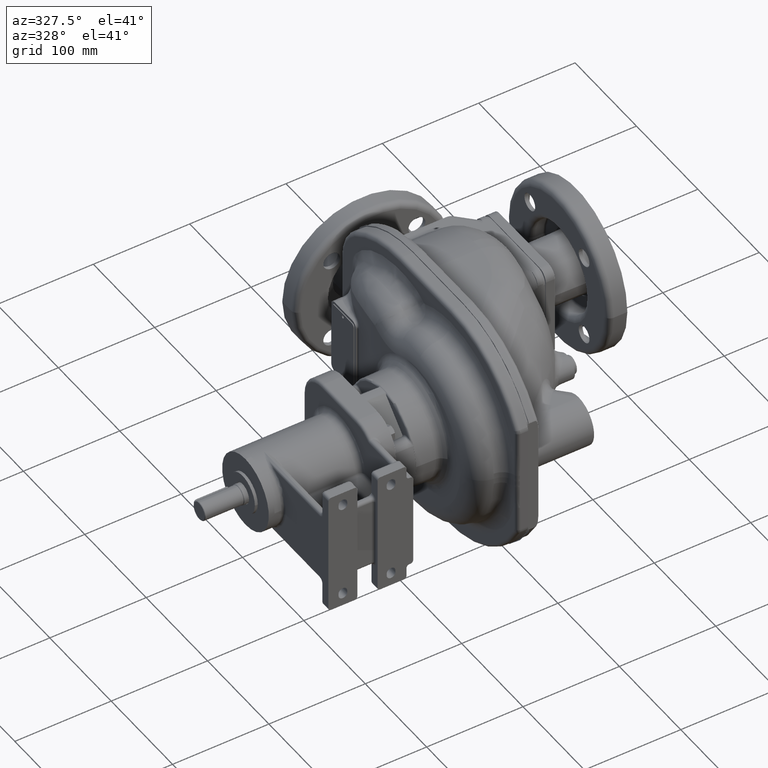
[diagram: clean part render]
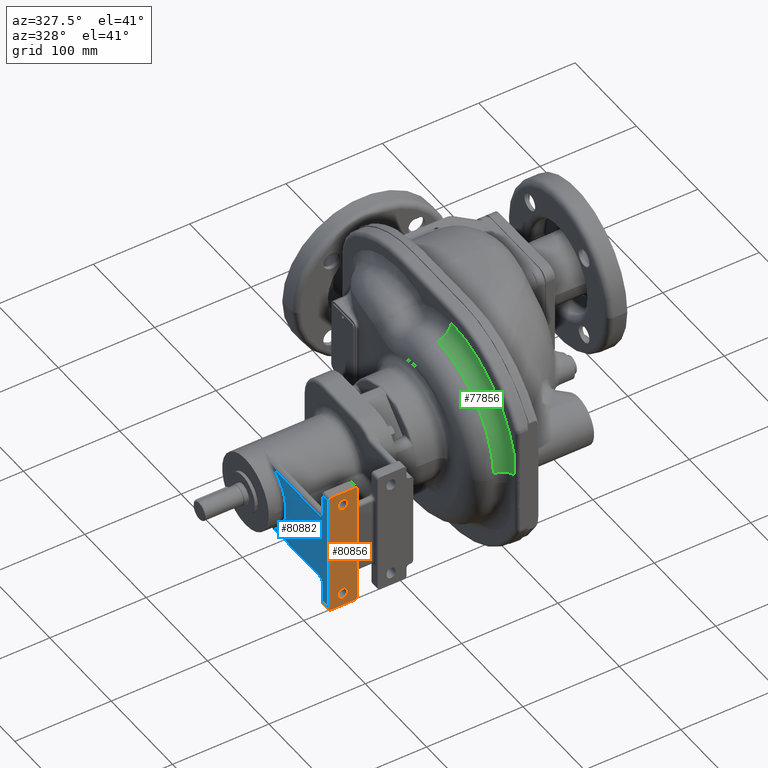
[diagram: same view with three faces highlighted in distinct colors, each labeled with its STEP entity id]
A machine part, auxiliary view with three faces highlighted in distinct colors.
Their STEP definitions:

[orange] entity #80856 — the highlighted planar face has unit normal (0, 1, 0).
#31646=CARTESIAN_POINT('',(-1.985E2,2.E1,-6.2E1));
#31647=DIRECTION('',(0.E0,1.E0,0.E0));
#31648=DIRECTION('',(1.E0,0.E0,-7.579122514774E-14));
#31649=AXIS2_PLACEMENT_3D('',#31646,#31647,#31648);
#31668=DIRECTION('',(1.E0,0.E0,0.E0));
#31669=VECTOR('',#31668,2.4E1);
#31670=CARTESIAN_POINT('',(-2.225E2,2.E1,-6.5E1));
#31671=LINE('',#31670,#31669);
#31682=CARTESIAN_POINT('',(-2.225E2,2.E1,-6.2E1));
#31683=DIRECTION('',(0.E0,1.E0,0.E0));
#31684=DIRECTION('',(0.E0,0.E0,-1.E0));
#31685=AXIS2_PLACEMENT_3D('',#31682,#31683,#31684);
#31692=DIRECTION('',(0.E0,0.E0,1.E0));
#31693=VECTOR('',#31692,2.5E0);
#31694=CARTESIAN_POINT('',(-2.15E2,2.E1,5.E1));
#31695=LINE('',#31694,#31693);
#31696=DIRECTION('',(0.E0,0.E0,-1.E0));
#31697=VECTOR('',#31696,2.5E0);
#31698=CARTESIAN_POINT('',(-2.06E2,2.E1,5.25E1));
#31699=LINE('',#31698,#31697);
#31700=CARTESIAN_POINT('',(-2.105E2,2.E1,5.25E1));
#31701=DIRECTION('',(0.E0,1.E0,0.E0));
#31702=DIRECTION('',(-1.E0,0.E0,0.E0));
#31703=AXIS2_PLACEMENT_3D('',#31700,#31701,#31702);
#31705=DIRECTION('',(0.E0,0.E0,-1.E0));
#31706=VECTOR('',#31705,2.5E0);
#31707=CARTESIAN_POINT('',(-2.06E2,2.E1,-5.E1));
#31708=LINE('',#31707,#31706);
#31709=DIRECTION('',(0.E0,0.E0,1.E0));
#31710=VECTOR('',#31709,2.5E0);
#31711=CARTESIAN_POINT('',(-2.15E2,2.E1,-5.25E1));
#31712=LINE('',#31711,#31710);
#31713=CARTESIAN_POINT('',(-2.105E2,2.E1,-5.25E1));
#31714=DIRECTION('',(0.E0,1.E0,0.E0));
#31715=DIRECTION('',(1.E0,0.E0,0.E0));
#31716=AXIS2_PLACEMENT_3D('',#31713,#31714,#31715);
#31718=DIRECTION('',(0.E0,0.E0,1.E0));
#31719=VECTOR('',#31718,1.24E2);
#31720=CARTESIAN_POINT('',(-2.255E2,2.E1,-6.2E1));
#31721=LINE('',#31720,#31719);
#32832=DIRECTION('',(-1.E0,0.E0,0.E0));
#32833=VECTOR('',#32832,2.4E1);
#32834=CARTESIAN_POINT('',(-1.985E2,2.E1,6.5E1));
#32835=LINE('',#32834,#32833);
#32844=CARTESIAN_POINT('',(-1.985E2,2.E1,6.2E1));
#32845=DIRECTION('',(0.E0,1.E0,0.E0));
#32846=DIRECTION('',(0.E0,0.E0,1.E0));
#32847=AXIS2_PLACEMENT_3D('',#32844,#32845,#32846);
#32858=DIRECTION('',(0.E0,0.E0,1.E0));
#32859=VECTOR('',#32858,1.24E2);
#32860=CARTESIAN_POINT('',(-1.955E2,2.E1,-6.2E1));
#32861=LINE('',#32860,#32859);
#33104=CARTESIAN_POINT('',(-2.225E2,2.E1,6.2E1));
#33105=DIRECTION('',(0.E0,1.E0,0.E0));
#33106=DIRECTION('',(-1.E0,0.E0,0.E0));
#33107=AXIS2_PLACEMENT_3D('',#33104,#33105,#33106);
#33128=CARTESIAN_POINT('',(-2.105E2,2.E1,5.E1));
#33129=DIRECTION('',(0.E0,1.E0,0.E0));
#33130=DIRECTION('',(1.E0,0.E0,0.E0));
#33131=AXIS2_PLACEMENT_3D('',#33128,#33129,#33130);
#33163=CARTESIAN_POINT('',(-2.105E2,2.E1,-5.E1));
#33164=DIRECTION('',(0.E0,1.E0,0.E0));
#33165=DIRECTION('',(-1.E0,0.E0,0.E0));
#33166=AXIS2_PLACEMENT_3D('',#33163,#33164,#33165);
#44048=CARTESIAN_POINT('',(-2.255E2,2.E1,-6.2E1));
#44049=CARTESIAN_POINT('',(-2.255E2,2.E1,6.2E1));
#44050=VERTEX_POINT('',#44048);
#44051=VERTEX_POINT('',#44049);
#44052=CARTESIAN_POINT('',(-1.985E2,2.E1,-6.5E1));
#44054=VERTEX_POINT('',#44052);
#44056=CARTESIAN_POINT('',(-1.955E2,2.E1,-6.2E1));
#44058=VERTEX_POINT('',#44056);
#44060=CARTESIAN_POINT('',(-1.955E2,2.E1,6.2E1));
#44061=VERTEX_POINT('',#44060);
#44062=CARTESIAN_POINT('',(-1.985E2,2.E1,6.5E1));
#44063=VERTEX_POINT('',#44062);
#44150=CARTESIAN_POINT('',(-2.225E2,2.E1,-6.5E1));
#44151=VERTEX_POINT('',#44150);
#44152=CARTESIAN_POINT('',(-2.225E2,2.E1,6.5E1));
#44153=VERTEX_POINT('',#44152);
#44261=CARTESIAN_POINT('',(-2.15E2,2.E1,5.E1));
#44262=CARTESIAN_POINT('',(-2.15E2,2.E1,5.25E1));
#44263=VERTEX_POINT('',#44261);
#44264=VERTEX_POINT('',#44262);
#44265=CARTESIAN_POINT('',(-2.06E2,2.E1,5.25E1));
#44266=VERTEX_POINT('',#44265);
#44267=CARTESIAN_POINT('',(-2.06E2,2.E1,5.E1));
#44268=VERTEX_POINT('',#44267);
#44277=CARTESIAN_POINT('',(-2.06E2,2.E1,-5.E1));
#44278=CARTESIAN_POINT('',(-2.06E2,2.E1,-5.25E1));
#44279=VERTEX_POINT('',#44277);
#44280=VERTEX_POINT('',#44278);
#44281=CARTESIAN_POINT('',(-2.15E2,2.E1,-5.25E1));
#44282=VERTEX_POINT('',#44281);
#44283=CARTESIAN_POINT('',(-2.15E2,2.E1,-5.E1));
#44284=VERTEX_POINT('',#44283);
#80816=CARTESIAN_POINT('',(-2.385E2,2.E1,0.E0));
#80817=DIRECTION('',(0.E0,1.E0,0.E0));
#80818=DIRECTION('',(-1.E0,0.E0,0.E0));
#80819=AXIS2_PLACEMENT_3D('',#80816,#80817,#80818);
#80820=PLANE('',#80819);
#80822=ORIENTED_EDGE('',*,*,#80821,.T.);
#80824=ORIENTED_EDGE('',*,*,#80823,.T.);
#80826=ORIENTED_EDGE('',*,*,#80825,.F.);
#80828=ORIENTED_EDGE('',*,*,#80827,.T.);
#80830=ORIENTED_EDGE('',*,*,#80829,.F.);
#80831=ORIENTED_EDGE('',*,*,#80753,.T.);
#80832=ORIENTED_EDGE('',*,*,#80771,.F.);
#80833=ORIENTED_EDGE('',*,*,#80807,.T.);
#80834=EDGE_LOOP('',(#80822,#80824,#80826,#80828,#80830,#80831,#80832,#80833));
#80835=FACE_OUTER_BOUND('',#80834,.F.);
#80837=ORIENTED_EDGE('',*,*,#80836,.F.);
#80839=ORIENTED_EDGE('',*,*,#80838,.F.);
#80841=ORIENTED_EDGE('',*,*,#80840,.F.);
#80843=ORIENTED_EDGE('',*,*,#80842,.F.);
#80844=EDGE_LOOP('',(#80837,#80839,#80841,#80843));
#80845=FACE_BOUND('',#80844,.F.);
#80847=ORIENTED_EDGE('',*,*,#80846,.F.);
#80849=ORIENTED_EDGE('',*,*,#80848,.F.);
#80851=ORIENTED_EDGE('',*,*,#80850,.F.);
#80853=ORIENTED_EDGE('',*,*,#80852,.F.);
#80854=EDGE_LOOP('',(#80847,#80849,#80851,#80853));
#80855=FACE_BOUND('',#80854,.F.);
#80856=ADVANCED_FACE('',(#80835,#80845,#80855),#80820,.F.);
#31650=CIRCLE('',#31649,3.E0);
#31686=CIRCLE('',#31685,3.E0);
#31704=CIRCLE('',#31703,4.5E0);
#31717=CIRCLE('',#31716,4.5E0);
#32848=CIRCLE('',#32847,3.E0);
#33108=CIRCLE('',#33107,3.E0);
#33132=CIRCLE('',#33131,4.5E0);
#33167=CIRCLE('',#33166,4.5E0);
#80753=EDGE_CURVE('',#44058,#44054,#31650,.T.);
#80771=EDGE_CURVE('',#44151,#44054,#31671,.T.);
#80807=EDGE_CURVE('',#44151,#44050,#31686,.T.);
#80821=EDGE_CURVE('',#44050,#44051,#31721,.T.);
#80823=EDGE_CURVE('',#44051,#44153,#33108,.T.);
#80825=EDGE_CURVE('',#44063,#44153,#32835,.T.);
#80827=EDGE_CURVE('',#44063,#44061,#32848,.T.);
#80829=EDGE_CURVE('',#44058,#44061,#32861,.T.);
#80836=EDGE_CURVE('',#44263,#44264,#31695,.T.);
#80838=EDGE_CURVE('',#44268,#44263,#33132,.T.);
#80840=EDGE_CURVE('',#44266,#44268,#31699,.T.);
#80842=EDGE_CURVE('',#44264,#44266,#31704,.T.);
#80846=EDGE_CURVE('',#44279,#44280,#31708,.T.);
#80848=EDGE_CURVE('',#44284,#44279,#33167,.T.);
#80850=EDGE_CURVE('',#44282,#44284,#31712,.T.);
#80852=EDGE_CURVE('',#44280,#44282,#31717,.T.);

[blue] entity #80882 — the highlighted planar face has unit normal (-1, 0, 0).
#31718=DIRECTION('',(0.E0,0.E0,1.E0));
#31719=VECTOR('',#31718,1.24E2);
#31720=CARTESIAN_POINT('',(-2.255E2,2.E1,-6.2E1));
#31721=LINE('',#31720,#31719);
#31722=DIRECTION('',(0.E0,1.E0,0.E0));
#31723=VECTOR('',#31722,9.E0);
#31724=CARTESIAN_POINT('',(-2.255E2,2.E1,-6.2E1));
#31725=LINE('',#31724,#31723);
#31726=DIRECTION('',(0.E0,0.E0,1.E0));
#31727=VECTOR('',#31726,2.1E1);
#31728=CARTESIAN_POINT('',(-2.255E2,2.9E1,-6.2E1));
#31729=LINE('',#31728,#31727);
#31730=DIRECTION('',(0.E0,-1.E0,0.E0));
#31731=VECTOR('',#31730,7.364584349594E1);
#31732=CARTESIAN_POINT('',(-2.255E2,1.086458434959E2,-3.5E1));
#31733=LINE('',#31732,#31731);
#31734=DIRECTION('',(0.E0,1.E0,0.E0));
#31735=VECTOR('',#31734,7.364584349594E1);
#31736=CARTESIAN_POINT('',(-2.255E2,3.5E1,3.5E1));
#31737=LINE('',#31736,#31735);
#31738=DIRECTION('',(0.E0,0.E0,1.E0));
#31739=VECTOR('',#31738,2.1E1);
#31740=CARTESIAN_POINT('',(-2.255E2,2.9E1,4.1E1));
#31741=LINE('',#31740,#31739);
#31742=DIRECTION('',(0.E0,1.E0,0.E0));
#31743=VECTOR('',#31742,9.E0);
#31744=CARTESIAN_POINT('',(-2.255E2,2.E1,6.2E1));
#31745=LINE('',#31744,#31743);
#31756=CARTESIAN_POINT('',(-2.255E2,3.5E1,-4.1E1));
#31757=DIRECTION('',(1.E0,0.E0,0.E0));
#31758=DIRECTION('',(0.E0,-4.263256414561E-14,1.E0));
#31759=AXIS2_PLACEMENT_3D('',#31756,#31757,#31758);
#31766=CARTESIAN_POINT('',(-2.255E2,1.086458434959E2,-3.5E1));
#32798=CARTESIAN_POINT('',(-2.255E2,3.5E1,4.1E1));
#32799=DIRECTION('',(1.E0,0.E0,0.E0));
#32800=DIRECTION('',(0.E0,-1.E0,0.E0));
#32801=AXIS2_PLACEMENT_3D('',#32798,#32799,#32800);
#33119=CARTESIAN_POINT('',(-2.255E2,1.3E2,0.E0));
#33120=DIRECTION('',(1.E0,0.E0,0.E0));
#33121=DIRECTION('',(0.E0,-5.208330854649E-1,8.536585365854E-1));
#33122=AXIS2_PLACEMENT_3D('',#33119,#33120,#33121);
#44048=CARTESIAN_POINT('',(-2.255E2,2.E1,-6.2E1));
#44049=CARTESIAN_POINT('',(-2.255E2,2.E1,6.2E1));
#44050=VERTEX_POINT('',#44048);
#44051=VERTEX_POINT('',#44049);
#44130=VERTEX_POINT('',#31766);
#44142=CARTESIAN_POINT('',(-2.255E2,3.5E1,-3.5E1));
#44143=VERTEX_POINT('',#44142);
#44160=CARTESIAN_POINT('',(-2.255E2,2.9E1,6.2E1));
#44161=VERTEX_POINT('',#44160);
#44164=CARTESIAN_POINT('',(-2.255E2,2.9E1,-6.2E1));
#44165=VERTEX_POINT('',#44164);
#44174=CARTESIAN_POINT('',(-2.255E2,2.9E1,-4.1E1));
#44175=VERTEX_POINT('',#44174);
#44180=CARTESIAN_POINT('',(-2.255E2,2.9E1,4.1E1));
#44181=VERTEX_POINT('',#44180);
#44182=CARTESIAN_POINT('',(-2.255E2,3.5E1,3.5E1));
#44183=VERTEX_POINT('',#44182);
#44184=CARTESIAN_POINT('',(-2.255E2,1.086458434959E2,3.5E1));
#44185=VERTEX_POINT('',#44184);
#80857=CARTESIAN_POINT('',(-2.255E2,1.3E2,0.E0));
#80858=DIRECTION('',(-1.E0,0.E0,0.E0));
#80859=DIRECTION('',(0.E0,0.E0,1.E0));
#80860=AXIS2_PLACEMENT_3D('',#80857,#80858,#80859);
#80861=PLANE('',#80860);
#80862=ORIENTED_EDGE('',*,*,#80821,.F.);
#80863=ORIENTED_EDGE('',*,*,#80811,.T.);
#80865=ORIENTED_EDGE('',*,*,#80864,.T.);
#80867=ORIENTED_EDGE('',*,*,#80866,.F.);
#80869=ORIENTED_EDGE('',*,*,#80868,.F.);
#80871=ORIENTED_EDGE('',*,*,#80870,.F.);
#80873=ORIENTED_EDGE('',*,*,#80872,.F.);
#80875=ORIENTED_EDGE('',*,*,#80874,.F.);
#80877=ORIENTED_EDGE('',*,*,#80876,.T.);
#80879=ORIENTED_EDGE('',*,*,#80878,.F.);
#80880=EDGE_LOOP('',(#80862,#80863,#80865,#80867,#80869,#80871,#80873,#80875,
#80877,#80879));
#80881=FACE_OUTER_BOUND('',#80880,.F.);
#80882=ADVANCED_FACE('',(#80881),#80861,.T.);
#31760=CIRCLE('',#31759,6.E0);
#32802=CIRCLE('',#32801,6.E0);
#33123=CIRCLE('',#33122,4.1E1);
#80811=EDGE_CURVE('',#44050,#44165,#31725,.T.);
#80821=EDGE_CURVE('',#44050,#44051,#31721,.T.);
#80864=EDGE_CURVE('',#44165,#44175,#31729,.T.);
#80866=EDGE_CURVE('',#44143,#44175,#31760,.T.);
#80868=EDGE_CURVE('',#44130,#44143,#31733,.T.);
#80870=EDGE_CURVE('',#44185,#44130,#33123,.T.);
#80872=EDGE_CURVE('',#44183,#44185,#31737,.T.);
#80874=EDGE_CURVE('',#44181,#44183,#32802,.T.);
#80876=EDGE_CURVE('',#44181,#44161,#31741,.T.);
#80878=EDGE_CURVE('',#44051,#44161,#31745,.T.);

[green] entity #77856 — the highlighted toroidal blend (fillet) surface has major radius 107.129 mm and minor (blend) radius 15 mm.
#27088=CARTESIAN_POINT('',(-3.15E1,1.25E2,-5.E0));
#27089=DIRECTION('',(1.E0,0.E0,0.E0));
#27090=DIRECTION('',(0.E0,0.E0,1.E0));
#27091=AXIS2_PLACEMENT_3D('',#27088,#27089,#27090);
#29171=CARTESIAN_POINT('',(-4.568918918919E1,1.25E2,-5.E0));
#29172=DIRECTION('',(1.E0,0.E0,0.E0));
#29173=DIRECTION('',(0.E0,0.E0,1.E0));
#29174=AXIS2_PLACEMENT_3D('',#29171,#29172,#29173);
#29188=CARTESIAN_POINT('',(-3.182698525263E1,2.118351033534E1,
1.413936083806E0));
#29189=CARTESIAN_POINT('',(-3.181820782298E1,2.119474251940E1,
2.266283764287E0));
#29190=CARTESIAN_POINT('',(-3.179747329907E1,2.122167475129E1,
3.973700314763E0));
#29191=CARTESIAN_POINT('',(-3.175826323863E1,2.127567783766E1,
6.548588379553E0));
#29192=CARTESIAN_POINT('',(-3.171306143300E1,2.134306839745E1,
9.129354644154E0));
#29193=CARTESIAN_POINT('',(-3.166454584854E1,2.142359022781E1,
1.171180690723E1));
#29194=CARTESIAN_POINT('',(-3.161590009142E1,2.151680066411E1,
1.429067772634E1));
#29195=CARTESIAN_POINT('',(-3.157072546244E1,2.162213780910E1,
1.686138305023E1));
#29196=CARTESIAN_POINT('',(-3.153296165236E1,2.173896202939E1,
1.941936753854E1));
#29197=CARTESIAN_POINT('',(-3.150679897131E1,2.186650061503E1,
2.196072563287E1));
#29198=CARTESIAN_POINT('',(-3.150000027972E1,2.195802489714E1,
2.363924415820E1));
#29199=CARTESIAN_POINT('',(-3.15E1,2.200533970174E1,2.447525881542E1));
#29201=CARTESIAN_POINT('',(-4.65E1,1.807455064928E1,1.605998251747E0));
#29202=DIRECTION('',(0.E0,-6.166377542583E-2,-9.980969786550E-1));
#29203=DIRECTION('',(5.405405405406E-2,9.966377717656E-1,-6.157362365916E-2));
#29204=AXIS2_PLACEMENT_3D('',#29201,#29202,#29203);
#29206=CARTESIAN_POINT('',(-4.65E1,1.25E2,1.021293187309E2));
#29207=DIRECTION('',(0.E0,-1.E0,0.E0));
#29208=DIRECTION('',(5.405405405406E-2,0.E0,-9.985380109141E-1));
#29209=AXIS2_PLACEMENT_3D('',#29206,#29207,#29208);
#41503=CARTESIAN_POINT('',(-4.568918918919E1,1.25E2,8.715124856723E1));
#41504=CARTESIAN_POINT('',(-4.568918918919E1,3.302411722577E1,
6.823938968472E-1));
#41505=VERTEX_POINT('',#41503);
#41506=VERTEX_POINT('',#41504);
#41540=CARTESIAN_POINT('',(-3.15E1,1.25E2,1.021293187309E2));
#41541=VERTEX_POINT('',#41540);
#41589=CARTESIAN_POINT('',(-3.15E1,2.200533970174E1,2.447525881542E1));
#41591=VERTEX_POINT('',#41589);
#41607=VERTEX_POINT('',#29188);
#77841=CARTESIAN_POINT('',(-4.65E1,1.25E2,-5.E0));
#77842=DIRECTION('',(-1.E0,0.E0,0.E0));
#77843=DIRECTION('',(0.E0,5.694319644105E-3,9.999837872305E-1));
#77844=AXIS2_PLACEMENT_3D('',#77841,#77842,#77843);
#77845=TOROIDAL_SURFACE('',#77844,1.071293187309E2,1.5E1);
#77847=ORIENTED_EDGE('',*,*,#77846,.F.);
#77849=ORIENTED_EDGE('',*,*,#77848,.F.);
#77850=ORIENTED_EDGE('',*,*,#77829,.F.);
#77852=ORIENTED_EDGE('',*,*,#77851,.T.);
#77853=ORIENTED_EDGE('',*,*,#75271,.T.);
#77854=EDGE_LOOP('',(#77847,#77849,#77850,#77852,#77853));
#77855=FACE_OUTER_BOUND('',#77854,.F.);
#77856=ADVANCED_FACE('',(#77855),#77845,.F.);
#27092=CIRCLE('',#27091,1.071293187309E2);
#29175=CIRCLE('',#29174,9.215124856723E1);
#29200=B_SPLINE_CURVE_WITH_KNOTS('',3,(#29188,#29189,#29190,#29191,#29192,
#29193,#29194,#29195,#29196,#29197,#29198,#29199),.UNSPECIFIED.,.F.,.F.,(4,1,1,
1,1,1,1,1,1,4),(0.E0,1.111111111111E-1,2.222222222222E-1,3.333333333333E-1,
4.444444444444E-1,5.555555555556E-1,6.666666666667E-1,7.777777777778E-1,
8.888888888889E-1,1.E0),.UNSPECIFIED.);
#29205=CIRCLE('',#29204,1.5E1);
#29210=CIRCLE('',#29209,1.5E1);
#75271=EDGE_CURVE('',#41541,#41591,#27092,.T.);
#77829=EDGE_CURVE('',#41505,#41506,#29175,.T.);
#77846=EDGE_CURVE('',#41607,#41591,#29200,.T.);
#77848=EDGE_CURVE('',#41506,#41607,#29205,.T.);
#77851=EDGE_CURVE('',#41505,#41541,#29210,.T.);